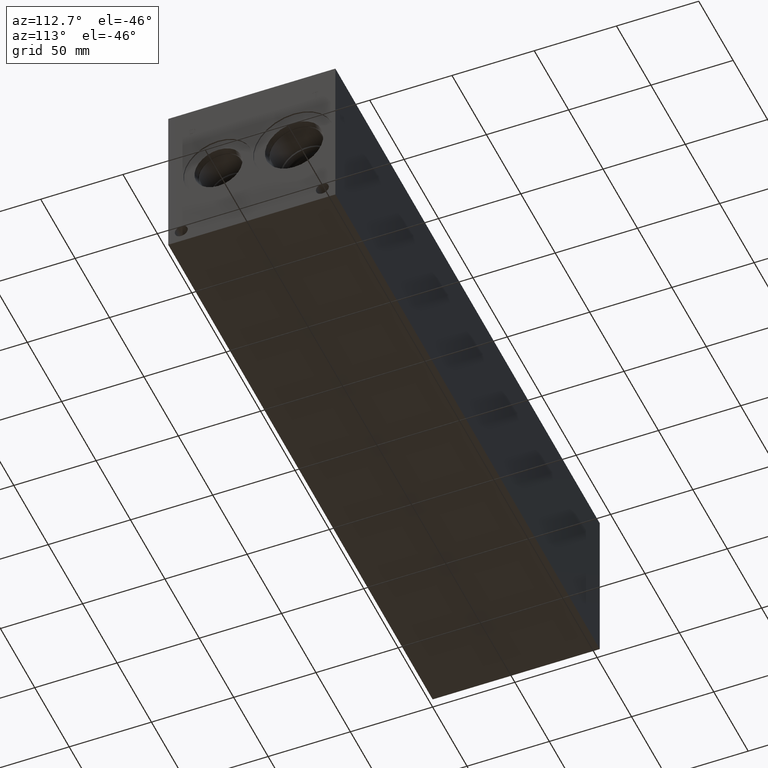
[diagram: clean part render]
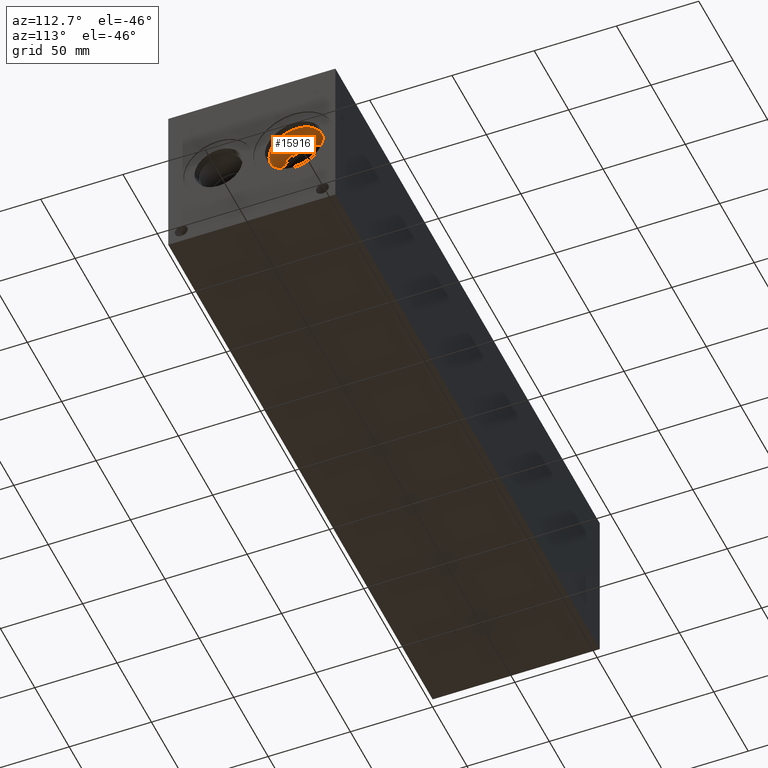
[diagram: same view with one face highlighted and labeled with its STEP entity id]
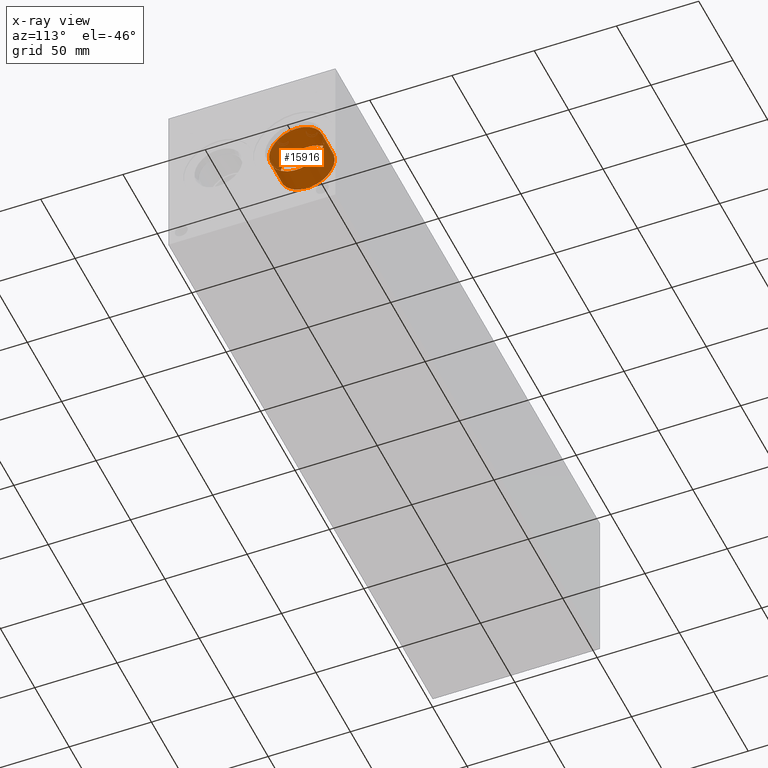
[diagram: x-ray of the same camera — body ghosted, the highlighted face saturated]
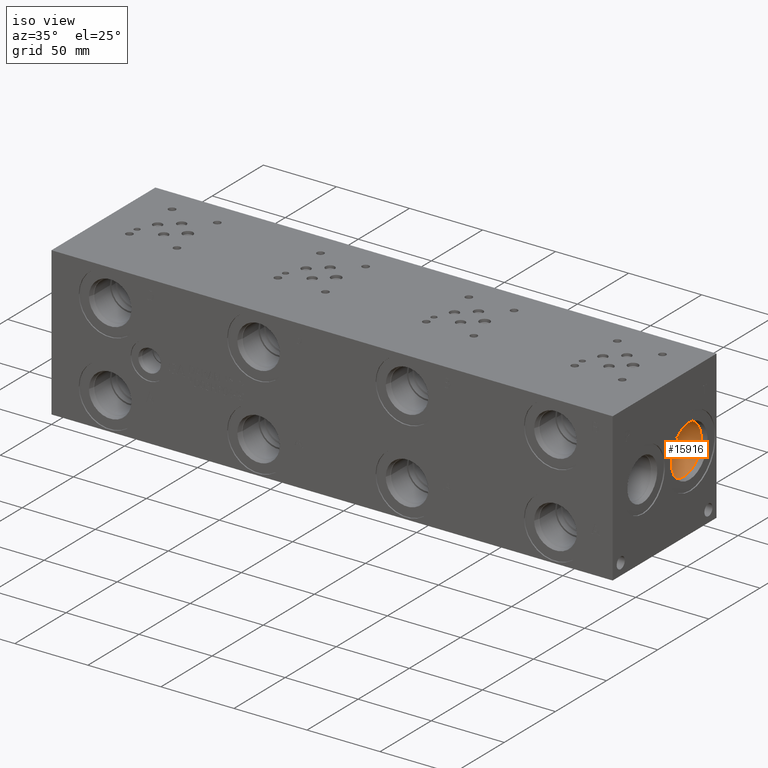
[diagram: same view with one face highlighted and labeled with its STEP entity id]
A machine part, auxiliary view. The second image highlights one B-rep face of the part: STEP entity #15916.
The next image is the same camera in x-ray: the body ghosted, the highlighted face saturated — about 0% of this face is hidden behind the body in this view.
A second angle (iso view) of the same face is appended — the face is thin or edge-on in the first view.
In plain terms, the highlighted cylindrical surface (bore or boss wall) has radius 16.67 mm, axis along (1, 0, 0).
Its self-contained STEP definition (entity closure, byte-faithful):
#141=CYLINDRICAL_SURFACE('',#16752,16.67);
#552=CIRCLE('',#16749,16.67);
#553=CIRCLE('',#16750,16.67);
#555=CIRCLE('',#16753,16.67);
#556=CIRCLE('',#16754,16.67);
#2010=FACE_OUTER_BOUND('',#2935,.T.);
#2935=EDGE_LOOP('',(#13281,#13282,#13283,#13284,#13285,#13286));
#4458=LINE('',#26755,#5879);
#5879=VECTOR('',#19792,16.67);
#7224=VERTEX_POINT('',#26745);
#7225=VERTEX_POINT('',#26746);
#7227=VERTEX_POINT('',#26752);
#7228=VERTEX_POINT('',#26753);
#9342=EDGE_CURVE('',#7224,#7225,#552,.T.);
#9343=EDGE_CURVE('',#7225,#7224,#553,.T.);
#9345=EDGE_CURVE('',#7227,#7228,#555,.T.);
#9346=EDGE_CURVE('',#7227,#7225,#4458,.T.);
#9347=EDGE_CURVE('',#7228,#7227,#556,.T.);
#13281=ORIENTED_EDGE('',*,*,#9345,.F.);
#13282=ORIENTED_EDGE('',*,*,#9346,.T.);
#13283=ORIENTED_EDGE('',*,*,#9342,.F.);
#13284=ORIENTED_EDGE('',*,*,#9343,.F.);
#13285=ORIENTED_EDGE('',*,*,#9346,.F.);
#13286=ORIENTED_EDGE('',*,*,#9347,.F.);
#15916=ADVANCED_FACE('',(#2010),#141,.F.);
#16749=AXIS2_PLACEMENT_3D('',#26747,#19782,#19783);
#16750=AXIS2_PLACEMENT_3D('',#26748,#19784,#19785);
#16752=AXIS2_PLACEMENT_3D('',#26751,#19788,#19789);
#16753=AXIS2_PLACEMENT_3D('',#26754,#19790,#19791);
#16754=AXIS2_PLACEMENT_3D('',#26756,#19793,#19794);
#19782=DIRECTION('center_axis',(1.,0.,0.));
#19783=DIRECTION('ref_axis',(0.,1.,0.));
#19784=DIRECTION('center_axis',(1.,0.,0.));
#19785=DIRECTION('ref_axis',(0.,1.,0.));
#19788=DIRECTION('center_axis',(1.,0.,0.));
#19789=DIRECTION('ref_axis',(0.,1.,0.));
#19790=DIRECTION('center_axis',(-1.,0.,0.));
#19791=DIRECTION('ref_axis',(0.,1.,0.));
#19792=DIRECTION('',(-1.,0.,0.));
#19793=DIRECTION('center_axis',(-1.,0.,0.));
#19794=DIRECTION('ref_axis',(0.,1.,0.));
#26745=CARTESIAN_POINT('',(364.3376,92.87,50.8));
#26746=CARTESIAN_POINT('',(364.3376,59.53,50.8));
#26747=CARTESIAN_POINT('Origin',(364.3376,76.2,50.8));
#26748=CARTESIAN_POINT('Origin',(364.3376,76.2,50.8));
#26751=CARTESIAN_POINT('Origin',(374.2563,76.2,50.8));
#26752=CARTESIAN_POINT('',(379.9027,59.53,50.8));
#26753=CARTESIAN_POINT('',(379.9027,76.2,67.47));
#26754=CARTESIAN_POINT('Origin',(379.9027,76.2,50.8));
#26755=CARTESIAN_POINT('',(374.2563,59.53,50.8));
#26756=CARTESIAN_POINT('Origin',(379.9027,76.2,50.8));